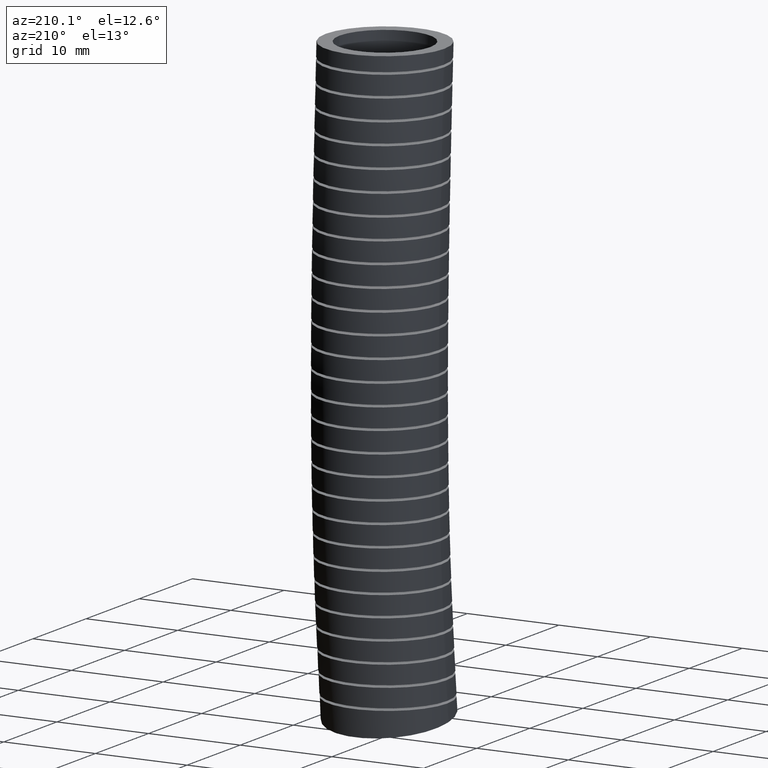
[diagram: clean part render]
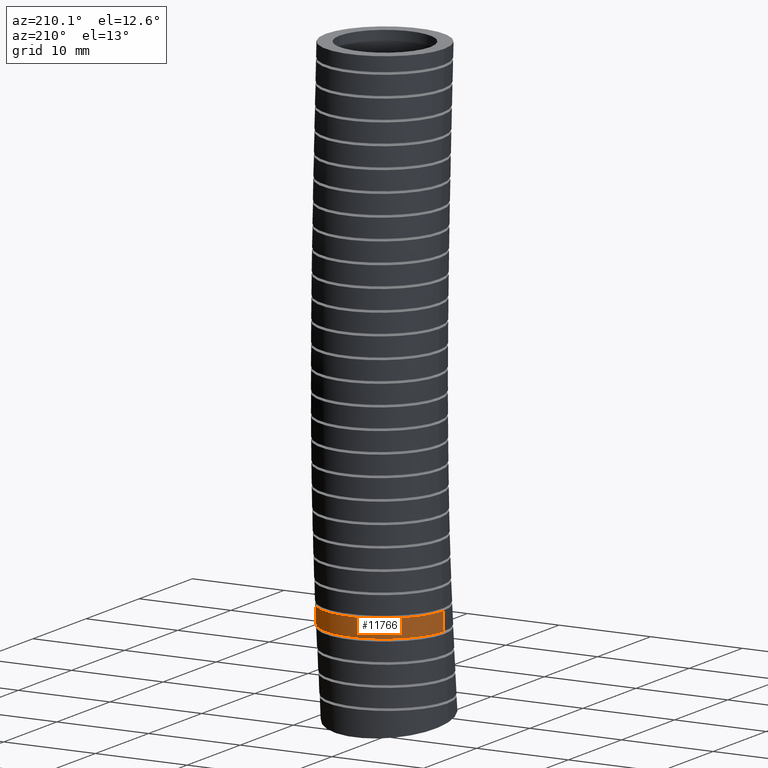
[diagram: same view with one face highlighted and labeled with its STEP entity id]
A machine part, auxiliary view. The second image highlights one B-rep face of the part: STEP entity #11766.
In plain terms, the highlighted face is a freeform B-spline surface patch.
Its self-contained STEP definition (entity closure, byte-faithful):
#3454 = CARTESIAN_POINT ( 'NONE',  ( -0.2549999999999998900, 0.4745687628602173200, -2.644231822998695900 ) ) ;
#3455 = CARTESIAN_POINT ( 'NONE',  ( -0.2549999999999998400, 0.4942108475508936700, -2.446087519929936800 ) ) ;
#3456 = CARTESIAN_POINT ( 'NONE',  ( -0.2550000000000000000, 0.5330634971365140200, -2.054151974607116000 ) ) ;
#3457 = CARTESIAN_POINT ( 'NONE',  ( -0.2550000000000000000, 0.5652806686658972100, -1.166484199753219600 ) ) ;
#3458 = CARTESIAN_POINT ( 'NONE',  ( -0.2549999999999999500, 0.5331445723641462500, -0.4883764727230331400 ) ) ;
#3459 = CARTESIAN_POINT ( 'NONE',  ( -0.2549999999999999500, 0.5100000000000000100, 0.0000000000000000000 ) ) ;
#3460 = CARTESIAN_POINT ( 'NONE',  ( -0.2550000000000000000, -0.02999999999999999500, -2.569999999999999800 ) ) ;
#3461 = CARTESIAN_POINT ( 'NONE',  ( -0.2550000000000000000, -0.01126751581493335000, -2.380080086044865000 ) ) ;
#3462 = CARTESIAN_POINT ( 'NONE',  ( -0.2550000000000000000, 0.02578591590436009000, -2.004412636156899000 ) ) ;
#3463 = CARTESIAN_POINT ( 'NONE',  ( -0.2550000000000001700, 0.05488873695197826100, -1.148486533150796300 ) ) ;
#3464 = CARTESIAN_POINT ( 'NONE',  ( -0.2550000000000000000, 0.02298048079048194500, -0.4808413197099051800 ) ) ;
#3465 = CARTESIAN_POINT ( 'NONE',  ( -0.2550000000000000000, 3.122849337825751200E-017, 0.0000000000000000000 ) ) ;
#3466 = CARTESIAN_POINT ( 'NONE',  ( -0.2550000000000000000, -0.5345687628602172600, -2.495768177001302000 ) ) ;
#3467 = CARTESIAN_POINT ( 'NONE',  ( -0.2549999999999999500, -0.5167458791807605400, -2.314072652159792300 ) ) ;
#3468 = CARTESIAN_POINT ( 'NONE',  ( -0.2550000000000001200, -0.4814916653277938100, -1.954673297706683400 ) ) ;
#3469 = CARTESIAN_POINT ( 'NONE',  ( -0.2550000000000001200, -0.4555031947619411200, -1.130488866548372800 ) ) ;
#3470 = CARTESIAN_POINT ( 'NONE',  ( -0.2550000000000000600, -0.4871836107831824000, -0.4733061666967772200 ) ) ;
#3471 = CARTESIAN_POINT ( 'NONE',  ( -0.2550000000000000600, -0.5100000000000000100, 0.0000000000000000000 ) ) ;
#3472 = CARTESIAN_POINT ( 'NONE',  ( 0.2549999999999999500, -0.5345687628602172600, -2.495768177001302000 ) ) ;
#3473 = CARTESIAN_POINT ( 'NONE',  ( 0.2549999999999998900, -0.5167458791807605400, -2.314072652159792300 ) ) ;
#3474 = CARTESIAN_POINT ( 'NONE',  ( 0.2550000000000000000, -0.4814916653277938100, -1.954673297706683400 ) ) ;
#3475 = CARTESIAN_POINT ( 'NONE',  ( 0.2550000000000000000, -0.4555031947619411200, -1.130488866548372800 ) ) ;
#3476 = CARTESIAN_POINT ( 'NONE',  ( 0.2550000000000000000, -0.4871836107831824000, -0.4733061666967772200 ) ) ;
#3477 = CARTESIAN_POINT ( 'NONE',  ( 0.2550000000000000000, -0.5100000000000000100, 0.0000000000000000000 ) ) ;
#3478 = CARTESIAN_POINT ( 'NONE',  ( 0.2550000000000000000, -0.03000000000000002700, -2.569999999999999800 ) ) ;
#3479 = CARTESIAN_POINT ( 'NONE',  ( 0.2550000000000000000, -0.01126751581493338000, -2.380080086044865000 ) ) ;
#3480 = CARTESIAN_POINT ( 'NONE',  ( 0.2550000000000000000, 0.02578591590436005500, -2.004412636156899000 ) ) ;
#3481 = CARTESIAN_POINT ( 'NONE',  ( 0.2550000000000001700, 0.05488873695197821200, -1.148486533150796300 ) ) ;
#3482 = CARTESIAN_POINT ( 'NONE',  ( 0.2550000000000000000, 0.02298048079048191000, -0.4808413197099051800 ) ) ;
#3483 = CARTESIAN_POINT ( 'NONE',  ( 0.2550000000000000000, 0.0000000000000000000, 0.0000000000000000000 ) ) ;
#3485 = B_SPLINE_CURVE_WITH_KNOTS ( 'NONE', 3,
 ( #3674, #3673, #3672, #3671, #3670, #3624, #3623, #3622, #3621, #3620, #3619, #3618, #3617, #3616, #3615, #3614, #3613, #3612, #3611, #3610, #3609, #3608, #3607, #3606, #3605, #3604, #3603, #3602, #3601, #3600, #3599, #3598, #3597, #3596, #3595, #3594, #3593, #3592, #3646, #3645, #3644, #3643, #3642, #3641 ),
 .UNSPECIFIED., .F., .F.,
 ( 4, 2, 2, 2, 2, 2, 2, 2, 2, 2, 2, 2, 2, 2, 2, 2, 2, 2, 2, 2, 2, 4 ),
 ( 0.02048754220502677400, 0.02112777652646070600, 0.02176801084789463400, 0.02304847949076249700, 0.02432894813363035600, 0.02496918245506428400, 0.02560941677649821600, 0.02688988541936607900, 0.02817035406223394200, 0.02945082270510180500, 0.03009105702653573600, 0.03073129134796966800, 0.03201175999083753100, 0.03329222863370539400, 0.03393246295513932500, 0.03457269727657325700, 0.03585316591944112000, 0.03649340024087505100, 0.03713363456230898300, 0.03841410320517683900, 0.03969457184804470200, 0.04097504049091256500 ),
 .UNSPECIFIED. ) ;
#3488 =( BOUNDED_SURFACE ( )  B_SPLINE_SURFACE ( 3, 3, ( 
 ( #3483, #3482, #3481, #3480, #3479, #3478 ),
 ( #3477, #3476, #3475, #3474, #3473, #3472 ),
 ( #3471, #3470, #3469, #3468, #3467, #3466 ),
 ( #3465, #3464, #3463, #3462, #3461, #3460 ),
 ( #3459, #3458, #3457, #3456, #3455, #3454 ),
 ( #3669, #3668, #3667, #3666, #3665, #3664 ),
 ( #3663, #3662, #3661, #3660, #3659, #3658 ) ),
 .UNSPECIFIED., .F., .F., .T. ) 
 B_SPLINE_SURFACE_WITH_KNOTS ( ( 4, 3, 4 ),
 ( 4, 1, 1, 4 ),
 ( 0.0000000000000000000, 0.5000000000000000000, 1.000000000000000000 ),
 ( 0.0000000000000000000, 0.5599999999999998300, 0.7775565539011162200, 1.000000000000000000 ),
 .UNSPECIFIED. ) 
 GEOMETRIC_REPRESENTATION_ITEM ( )  RATIONAL_B_SPLINE_SURFACE ( (
 ( 1.000000000000000000, 1.000000000000000000, 0.9999999999999998900, 1.000000000000000000, 1.000000000000000000, 1.000000000000000000),
 ( 0.3333333333333333100, 0.3333333333333333100, 0.3333333333333332600, 0.3333333333333332600, 0.3333333333333333700, 0.3333333333333333100),
 ( 0.3333333333333333100, 0.3333333333333333100, 0.3333333333333332600, 0.3333333333333332600, 0.3333333333333333700, 0.3333333333333333100),
 ( 1.000000000000000000, 1.000000000000000000, 0.9999999999999998900, 1.000000000000000000, 1.000000000000000000, 1.000000000000000000),
 ( 0.3333333333333333100, 0.3333333333333333100, 0.3333333333333332600, 0.3333333333333332600, 0.3333333333333333700, 0.3333333333333333100),
 ( 0.3333333333333333100, 0.3333333333333333100, 0.3333333333333332600, 0.3333333333333332600, 0.3333333333333333700, 0.3333333333333333100),
 ( 1.000000000000000000, 1.000000000000000000, 0.9999999999999998900, 1.000000000000000000, 1.000000000000000000, 1.000000000000000000) ) ) 
 REPRESENTATION_ITEM ( '' )  SURFACE ( )  );
#3592 = CARTESIAN_POINT ( 'NONE',  ( 0.2213003525040010100, 0.1378972880974908800, -2.138472183793758100 ) ) ;
#3593 = CARTESIAN_POINT ( 'NONE',  ( 0.2074626323696967800, 0.1586637163864264600, -2.138472183793758600 ) ) ;
#3594 = CARTESIAN_POINT ( 'NONE',  ( 0.2025042950655930900, 0.1653741053769179100, -2.138472183793759000 ) ) ;
#3595 = CARTESIAN_POINT ( 'NONE',  ( 0.1918776503563975900, 0.1783600813559165500, -2.138472183793759500 ) ) ;
#3596 = CARTESIAN_POINT ( 'NONE',  ( 0.1862061681505178000, 0.1846299603175912400, -2.138472183793759000 ) ) ;
#3597 = CARTESIAN_POINT ( 'NONE',  ( 0.1684981245513911000, 0.2023708051056541400, -2.138472183793759900 ) ) ;
#3598 = CARTESIAN_POINT ( 'NONE',  ( 0.1556596185413647600, 0.2129322206022361800, -2.138472183793761200 ) ) ;
#3599 = CARTESIAN_POINT ( 'NONE',  ( 0.1348539797556894700, 0.2268778713486182500, -2.138472183793760400 ) ) ;
#3600 = CARTESIAN_POINT ( 'NONE',  ( 0.1276195984453998300, 0.2312282912073079800, -2.138472183793759000 ) ) ;
#3601 = CARTESIAN_POINT ( 'NONE',  ( 0.1128114396488468900, 0.2391594512758686300, -2.138472183793759500 ) ) ;
#3602 = CARTESIAN_POINT ( 'NONE',  ( 0.1052648103158339300, 0.2427315016563387200, -2.138472183793759000 ) ) ;
#3603 = CARTESIAN_POINT ( 'NONE',  ( 0.08220896248796322200, 0.2522993356993170600, -2.138472183793759500 ) ) ;
#3604 = CARTESIAN_POINT ( 'NONE',  ( 0.06628779137522598800, 0.2571578647471546300, -2.138472183793759900 ) ) ;
#3605 = CARTESIAN_POINT ( 'NONE',  ( 0.03330886987516958700, 0.2637372318345540500, -2.138472183793759900 ) ) ;
#3606 = CARTESIAN_POINT ( 'NONE',  ( 0.01661323779858183900, 0.2653674236228447700, -2.138472183793757700 ) ) ;
#3607 = CARTESIAN_POINT ( 'NONE',  ( -0.008323389685376984800, 0.2653663281838789000, -2.138472183793758100 ) ) ;
#3608 = CARTESIAN_POINT ( 'NONE',  ( -0.01663971815763946900, 0.2649597526456355400, -2.138472183793759000 ) ) ;
#3609 = CARTESIAN_POINT ( 'NONE',  ( -0.03328075867789896700, 0.2633198867055864300, -2.138472183793759000 ) ) ;
#3610 = CARTESIAN_POINT ( 'NONE',  ( -0.04165060827442362100, 0.2620755078915862900, -2.138472183793759500 ) ) ;
#3611 = CARTESIAN_POINT ( 'NONE',  ( -0.06631124338252447600, 0.2571482109046483400, -2.138472183793759000 ) ) ;
#3612 = CARTESIAN_POINT ( 'NONE',  ( -0.08221930185863231300, 0.2522970248503331700, -2.138472183793759500 ) ) ;
#3613 = CARTESIAN_POINT ( 'NONE',  ( -0.1129914455045128000, 0.2395230797717970400, -2.138472183793759500 ) ) ;
#3614 = CARTESIAN_POINT ( 'NONE',  ( -0.1279745206643028700, 0.2314919487912309200, -2.138472183793759900 ) ) ;
#3615 = CARTESIAN_POINT ( 'NONE',  ( -0.1556650971628560600, 0.2129256439620021400, -2.138472183793759000 ) ) ;
#3616 = CARTESIAN_POINT ( 'NONE',  ( -0.1685076501255209900, 0.2023653901348851100, -2.138472183793759900 ) ) ;
#3617 = CARTESIAN_POINT ( 'NONE',  ( -0.1862485712102036100, 0.1845854063476551900, -2.138472183793759900 ) ) ;
#3618 = CARTESIAN_POINT ( 'NONE',  ( -0.1919253595908170800, 0.1783045218390192400, -2.138472183793759500 ) ) ;
#3619 = CARTESIAN_POINT ( 'NONE',  ( -0.2025239055052870400, 0.1653473814120427800, -2.138472183793759000 ) ) ;
#3620 = CARTESIAN_POINT ( 'NONE',  ( -0.2074745597112331900, 0.1586467297502606200, -2.138472183793759000 ) ) ;
#3621 = CARTESIAN_POINT ( 'NONE',  ( -0.2213024053628658600, 0.1378923790511542300, -2.138472183793759000 ) ) ;
#3622 = CARTESIAN_POINT ( 'NONE',  ( -0.2291791559623939900, 0.1231596622245581300, -2.138472183793759000 ) ) ;
#3623 = CARTESIAN_POINT ( 'NONE',  ( -0.2420422552590807700, 0.09202412401188317400, -2.138472183793758600 ) ) ;
#3624 = CARTESIAN_POINT ( 'NONE',  ( -0.2468480886380929300, 0.07607649766139916400, -2.138472183793758100 ) ) ;
#3641 = CARTESIAN_POINT ( 'NONE',  ( 0.2550000000000000600, 0.009862251034594793000, -2.138472183794217800 ) ) ;
#3642 = CARTESIAN_POINT ( 'NONE',  ( 0.2549999999999998900, 0.02672448897089779700, -2.138472183794217800 ) ) ;
#3643 = CARTESIAN_POINT ( 'NONE',  ( 0.2533291953954452900, 0.04346678963888151600, -2.138472183793758100 ) ) ;
#3644 = CARTESIAN_POINT ( 'NONE',  ( 0.2468465598291092500, 0.07608068871250725500, -2.138472183793758600 ) ) ;
#3645 = CARTESIAN_POINT ( 'NONE',  ( 0.2420152331109441100, 0.09210162485834472200, -2.138472183793759000 ) ) ;
#3646 = CARTESIAN_POINT ( 'NONE',  ( 0.2291524650640858800, 0.1232121248832635100, -2.138472183793758600 ) ) ;
#3651 = FACE_OUTER_BOUND ( 'NONE', #11764, .T. ) ;
#3658 = CARTESIAN_POINT ( 'NONE',  ( 0.2550000000000000000, -0.03000000000000002700, -2.569999999999999800 ) ) ;
#3659 = CARTESIAN_POINT ( 'NONE',  ( 0.2550000000000000000, -0.01126751581493338000, -2.380080086044865000 ) ) ;
#3660 = CARTESIAN_POINT ( 'NONE',  ( 0.2550000000000000000, 0.02578591590436005500, -2.004412636156899000 ) ) ;
#3661 = CARTESIAN_POINT ( 'NONE',  ( 0.2550000000000001700, 0.05488873695197821200, -1.148486533150796300 ) ) ;
#3662 = CARTESIAN_POINT ( 'NONE',  ( 0.2550000000000000000, 0.02298048079048191000, -0.4808413197099051800 ) ) ;
#3663 = CARTESIAN_POINT ( 'NONE',  ( 0.2550000000000000000, 0.0000000000000000000, 0.0000000000000000000 ) ) ;
#3664 = CARTESIAN_POINT ( 'NONE',  ( 0.2549999999999999500, 0.4745687628602173200, -2.644231822998695900 ) ) ;
#3665 = CARTESIAN_POINT ( 'NONE',  ( 0.2549999999999998900, 0.4942108475508936700, -2.446087519929936800 ) ) ;
#3666 = CARTESIAN_POINT ( 'NONE',  ( 0.2550000000000000000, 0.5330634971365140200, -2.054151974607116000 ) ) ;
#3667 = CARTESIAN_POINT ( 'NONE',  ( 0.2550000000000000000, 0.5652806686658972100, -1.166484199753219600 ) ) ;
#3668 = CARTESIAN_POINT ( 'NONE',  ( 0.2550000000000000000, 0.5331445723641462500, -0.4883764727230331400 ) ) ;
#3669 = CARTESIAN_POINT ( 'NONE',  ( 0.2550000000000000000, 0.5100000000000000100, 0.0000000000000000000 ) ) ;
#3670 = CARTESIAN_POINT ( 'NONE',  ( -0.2517108439332015900, 0.05160690399203776000, -2.138472183793758100 ) ) ;
#3671 = CARTESIAN_POINT ( 'NONE',  ( -0.2529378826536602400, 0.04335834068160888300, -2.138472183793759000 ) ) ;
#3672 = CARTESIAN_POINT ( 'NONE',  ( -0.2545850744101149100, 0.02667268093340001800, -2.138472183793759900 ) ) ;
#3673 = CARTESIAN_POINT ( 'NONE',  ( -0.2550000000000000600, 0.01822238425305708300, -2.138472183793759900 ) ) ;
#3674 = CARTESIAN_POINT ( 'NONE',  ( -0.2550000000000000600, 0.009862251034668031300, -2.138472183793759500 ) ) ;
#4433 = CARTESIAN_POINT ( 'NONE',  ( -0.2550000000000000600, 0.009862251034668031300, -2.138472183793759500 ) ) ;
#4434 = CARTESIAN_POINT ( 'NONE',  ( 0.2550000000000000600, 0.009862251034594793000, -2.138472183794217800 ) ) ;
#4678 = CARTESIAN_POINT ( 'NONE',  ( 0.2550000000000000000, 0.003238721080601713600, -2.218162925781977300 ) ) ;
#5017 = CARTESIAN_POINT ( 'NONE',  ( -0.2550000000000000600, 0.003238721047504843800, -2.218162925974061000 ) ) ;
#5018 = CARTESIAN_POINT ( 'NONE',  ( -0.2550000000000000000, 0.01990204977398091900, -2.218162925974061400 ) ) ;
#5019 = CARTESIAN_POINT ( 'NONE',  ( -0.2533371584567167800, 0.03682417937812022100, -2.218162925974059200 ) ) ;
#5020 = CARTESIAN_POINT ( 'NONE',  ( -0.2468354494468334200, 0.06954648651530306900, -2.218162925974059600 ) ) ;
#5021 = CARTESIAN_POINT ( 'NONE',  ( -0.2420265762460160600, 0.08547024718411569400, -2.218162925974061000 ) ) ;
#5022 = CARTESIAN_POINT ( 'NONE',  ( -0.2324464977475723400, 0.1086914495472065500, -2.218162925974060500 ) ) ;
#5023 = CARTESIAN_POINT ( 'NONE',  ( -0.2288352620754230400, 0.1163522191398815900, -2.218162925974061000 ) ) ;
#5024 = CARTESIAN_POINT ( 'NONE',  ( -0.2209541441512079500, 0.1311354724870578400, -2.218162925974061000 ) ) ;
#5025 = CARTESIAN_POINT ( 'NONE',  ( -0.2166748470821657200, 0.1382902174462510800, -2.218162925974061800 ) ) ;
#5026 = CARTESIAN_POINT ( 'NONE',  ( -0.2028412508592293800, 0.1590581494681846100, -2.218162925974061400 ) ) ;
#5027 = CARTESIAN_POINT ( 'NONE',  ( -0.1922809484708943000, 0.1720021075390519300, -2.218162925974061000 ) ) ;
#5028 = CARTESIAN_POINT ( 'NONE',  ( -0.1684830908607765100, 0.1958779042824186400, -2.218162925974061400 ) ) ;
#5029 = CARTESIAN_POINT ( 'NONE',  ( -0.1556055598432470300, 0.2064563296873520600, -2.218162925974061000 ) ) ;
#5030 = CARTESIAN_POINT ( 'NONE',  ( -0.1348747114211119600, 0.2203588740743871200, -2.218162925974060100 ) ) ;
#5031 = CARTESIAN_POINT ( 'NONE',  ( -0.1277269345921251100, 0.2246631291396454500, -2.218162925974060100 ) ) ;
#5032 = CARTESIAN_POINT ( 'NONE',  ( -0.1129443822967810100, 0.2325951013736475000, -2.218162925974059200 ) ) ;
#5033 = CARTESIAN_POINT ( 'NONE',  ( -0.1052970955549379400, 0.2362221367112473100, -2.218162925974059600 ) ) ;
#5034 = CARTESIAN_POINT ( 'NONE',  ( -0.08212579498482881800, 0.2458424418557975100, -2.218162925974060500 ) ) ;
#5035 = CARTESIAN_POINT ( 'NONE',  ( -0.06621368740230784700, 0.2506815993135636500, -2.218162925974061800 ) ) ;
#5036 = CARTESIAN_POINT ( 'NONE',  ( -0.03346420955268337300, 0.2572243215507747900, -2.218162925974061800 ) ) ;
#5037 = CARTESIAN_POINT ( 'NONE',  ( -0.01655179825092543600, 0.2588894150904436100, -2.218162925974061000 ) ) ;
#5038 = CARTESIAN_POINT ( 'NONE',  ( 0.01675093186240793700, 0.2588763797892791900, -2.218162925974061000 ) ) ;
#5039 = CARTESIAN_POINT ( 'NONE',  ( 0.03332037559891969800, 0.2572507599182312100, -2.218162925974062700 ) ) ;
#5040 = CARTESIAN_POINT ( 'NONE',  ( 0.05804813713292244400, 0.2523140657860285000, -2.218162925974062700 ) ) ;
#5041 = CARTESIAN_POINT ( 'NONE',  ( 0.06623343048675345300, 0.2502513226589692100, -2.218162925974061000 ) ) ;
#5042 = CARTESIAN_POINT ( 'NONE',  ( 0.08220808943699009500, 0.2453793099585057600, -2.218162925974060500 ) ) ;
#5043 = CARTESIAN_POINT ( 'NONE',  ( 0.09787082402905977800, 0.2397452472983177000, -2.218162925974061800 ) ) ;
#5044 = CARTESIAN_POINT ( 'NONE',  ( 0.1129179255620810000, 0.2326071560633538900, -2.218162925974060100 ) ) ;
#5045 = CARTESIAN_POINT ( 'NONE',  ( 0.1276523836779879200, 0.2247052581644244400, -2.218162925974060100 ) ) ;
#5046 = CARTESIAN_POINT ( 'NONE',  ( 0.1349020798634805200, 0.2203445386695773400, -2.218162925974061000 ) ) ;
#5047 = CARTESIAN_POINT ( 'NONE',  ( 0.1558049702128471400, 0.2063144902598657800, -2.218162925974061000 ) ) ;
#5048 = CARTESIAN_POINT ( 'NONE',  ( 0.1686396327134943600, 0.1957231186081373500, -2.218162925974060100 ) ) ;
#5049 = CARTESIAN_POINT ( 'NONE',  ( 0.1921590870498555700, 0.1721220958537264500, -2.218162925974061400 ) ) ;
#5050 = CARTESIAN_POINT ( 'NONE',  ( 0.2029213884946564400, 0.1589584142453882600, -2.218162925974062700 ) ) ;
#5051 = CARTESIAN_POINT ( 'NONE',  ( 0.2214006226138324800, 0.1311747723616375800, -2.218162925974063600 ) ) ;
#5052 = CARTESIAN_POINT ( 'NONE',  ( 0.2292209101394532500, 0.1164963247180231500, -2.218162925974062300 ) ) ;
#5053 = CARTESIAN_POINT ( 'NONE',  ( 0.2388038976370067400, 0.09328848804715585100, -2.218162925974062700 ) ) ;
#5054 = CARTESIAN_POINT ( 'NONE',  ( 0.2416473101530521900, 0.08531178958364225900, -2.218162925974061800 ) ) ;
#5055 = CARTESIAN_POINT ( 'NONE',  ( 0.2464904512193706000, 0.06926696725011599600, -2.218162925974061400 ) ) ;
#5056 = CARTESIAN_POINT ( 'NONE',  ( 0.2485044411420279400, 0.06117518317701457800, -2.218162925974061000 ) ) ;
#5057 = CARTESIAN_POINT ( 'NONE',  ( 0.2533510378316416500, 0.03669637058087303600, -2.218162925974061800 ) ) ;
#5058 = CARTESIAN_POINT ( 'NONE',  ( 0.2550000000000000000, 0.02010787794555516500, -2.218162925781977700 ) ) ;
#5059 = CARTESIAN_POINT ( 'NONE',  ( 0.2550000000000000000, 0.003238721080601713600, -2.218162925781977300 ) ) ;
#5063 = CARTESIAN_POINT ( 'NONE',  ( -0.2550000000000000600, 0.003238721047504843800, -2.218162925974061000 ) ) ;
#5064 = CARTESIAN_POINT ( 'NONE',  ( -0.2550000000000000000, 0.005526972822472096300, -2.191602462460866100 ) ) ;
#5065 = CARTESIAN_POINT ( 'NONE',  ( -0.2550000000000000000, 0.007740458491273862300, -2.165039100472041500 ) ) ;
#5066 = CARTESIAN_POINT ( 'NONE',  ( -0.2550000000000000600, 0.009862251034668031300, -2.138472183793759500 ) ) ;
#5127 = B_SPLINE_CURVE_WITH_KNOTS ( 'NONE', 3,
 ( #5066, #5065, #5064, #5063 ),
 .UNSPECIFIED., .F., .F.,
 ( 4, 4 ),
 ( 0.8315652633518618700, 0.8626591759609884000 ),
 .UNSPECIFIED. ) ;
#5158 = B_SPLINE_CURVE_WITH_KNOTS ( 'NONE', 3,
 ( #5059, #5058, #5057, #5056, #5055, #5054, #5053, #5052, #5051, #5050, #5049, #5048, #5047, #5046, #5045, #5044, #5043, #5042, #5041, #5040, #5039, #5038, #5037, #5036, #5035, #5034, #5033, #5032, #5031, #5030, #5029, #5028, #5027, #5026, #5025, #5024, #5023, #5022, #5021, #5020, #5019, #5018, #5017 ),
 .UNSPECIFIED., .F., .F.,
 ( 4, 2, 2, 2, 2, 2, 2, 2, 1, 2, 2, 2, 2, 2, 2, 2, 2, 2, 2, 2, 2, 4 ),
 ( 0.0000000000000000000, 0.001267205157230771400, 0.001900807735846156600, 0.002534410314461541800, 0.003801615471692311500, 0.005068820628923081900, 0.006336025786153852400, 0.006969628364769238500, 0.007603230943384624600, 0.008236833522000009900, 0.008870436100615395100, 0.01013764125784616600, 0.01140484641507693600, 0.01267205157230770700, 0.01330565415092309500, 0.01393925672953848100, 0.01520646188676925100, 0.01647366704400002000, 0.01710726962261540500, 0.01774087220123079400, 0.01900807735846156400, 0.02027528251569233100 ),
 .UNSPECIFIED. ) ;
#5594 = CARTESIAN_POINT ( 'NONE',  ( 0.2550000000000000000, 0.003238721080601713600, -2.218162925781977300 ) ) ;
#5595 = CARTESIAN_POINT ( 'NONE',  ( 0.2550000000000000000, 0.005526972833209319900, -2.191602462332007000 ) ) ;
#5596 = CARTESIAN_POINT ( 'NONE',  ( 0.2550000000000000000, 0.007740458496400799300, -2.165039100407834200 ) ) ;
#5597 = CARTESIAN_POINT ( 'NONE',  ( 0.2550000000000000600, 0.009862251034594793000, -2.138472183794217800 ) ) ;
#5611 = CARTESIAN_POINT ( 'NONE',  ( -0.2550000000000000600, 0.003238721047504843800, -2.218162925974061000 ) ) ;
#5748 = B_SPLINE_CURVE_WITH_KNOTS ( 'NONE', 3,
 ( #5597, #5596, #5595, #5594 ),
 .UNSPECIFIED., .F., .F.,
 ( 4, 4 ),
 ( 0.8315652633520417300, 0.8626591758854796900 ),
 .UNSPECIFIED. ) ;
#11764 = EDGE_LOOP ( 'NONE', ( #11767, #11768, #11770, #11870 ) ) ;
#11766 = ADVANCED_FACE ( 'NONE', ( #3651 ), #3488, .T. ) ;
#11767 = ORIENTED_EDGE ( 'NONE', *, *, #11852, .F. ) ;
#11768 = ORIENTED_EDGE ( 'NONE', *, *, #11769, .T. ) ;
#11769 = EDGE_CURVE ( 'NONE', #11829, #11828, #3485, .T. ) ;
#11770 = ORIENTED_EDGE ( 'NONE', *, *, #11902, .T. ) ;
#11828 = VERTEX_POINT ( 'NONE', #4434 ) ;
#11829 = VERTEX_POINT ( 'NONE', #4433 ) ;
#11831 = VERTEX_POINT ( 'NONE', #4678 ) ;
#11852 = EDGE_CURVE ( 'NONE', #11829, #11899, #5127, .T. ) ;
#11870 = ORIENTED_EDGE ( 'NONE', *, *, #11871, .T. ) ;
#11871 = EDGE_CURVE ( 'NONE', #11831, #11899, #5158, .T. ) ;
#11899 = VERTEX_POINT ( 'NONE', #5611 ) ;
#11902 = EDGE_CURVE ( 'NONE', #11828, #11831, #5748, .T. ) ;